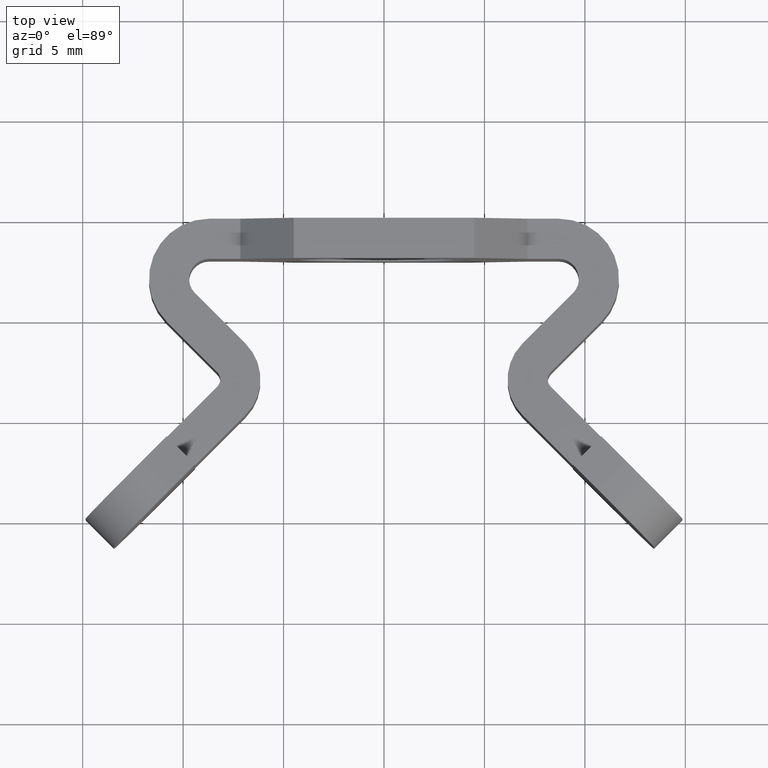
[diagram: clean part render]
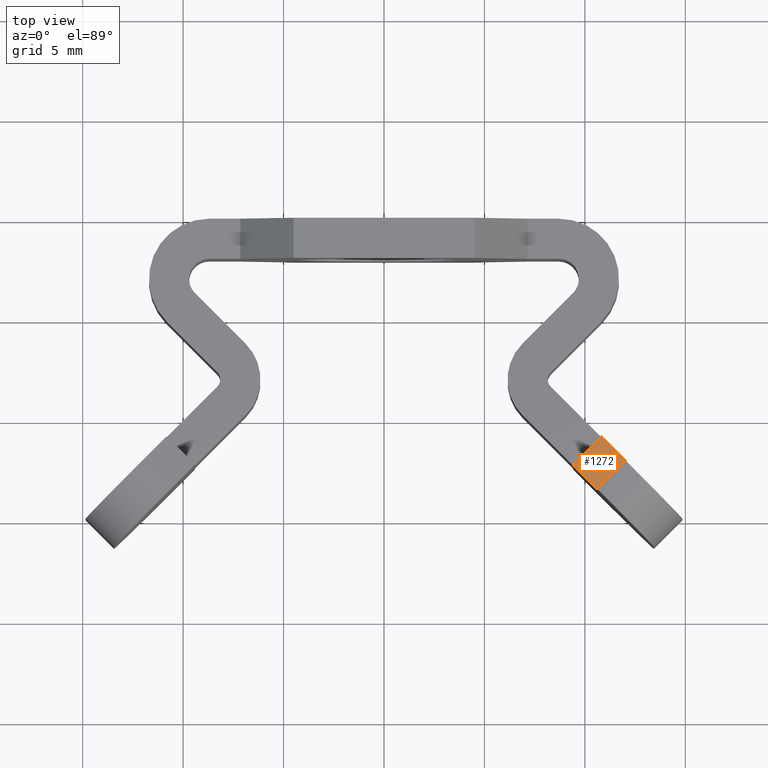
[diagram: same view with one face highlighted and labeled with its STEP entity id]
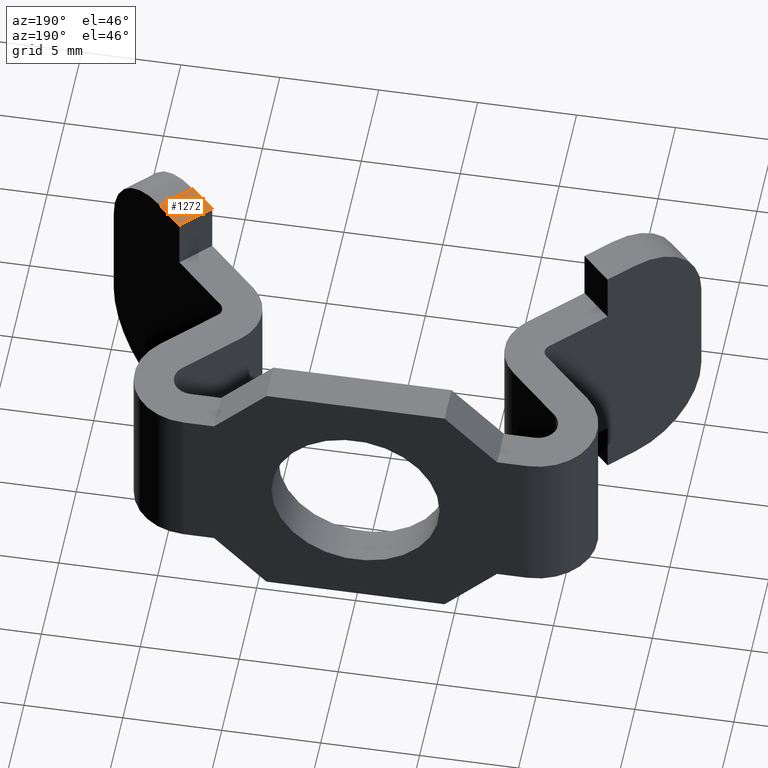
[diagram: same view with one face highlighted and labeled with its STEP entity id]
A machine part, top view. The second image highlights one B-rep face of the part: STEP entity #1272.
A second angle (auxiliary view) of the same face is appended — the face is thin or edge-on in the first view.
In plain terms, the highlighted planar face has unit normal (0, 0, -1).
Its self-contained STEP definition (entity closure, byte-faithful):
#982=CARTESIAN_POINT('',(10.609188312841070,-13.494974437473502,6.649999999973261));
#983=VERTEX_POINT('',#982);
#991=CARTESIAN_POINT('',(9.407107000034102,-12.292893124632428,6.649999999973261));
#992=VERTEX_POINT('',#991);
#993=CARTESIAN_POINT('',(10.609188312841621,-13.494974437472951,6.649999999973261));
#994=DIRECTION('',(-0.707106781176860,0.707106781196235,0.0));
#995=VECTOR('',#994,1.699999695671038);
#996=LINE('',#993,#995);
#997=EDGE_CURVE('',#983,#992,#996,.T.);
#1125=CARTESIAN_POINT('',(10.821320562427445,-10.878679562280013,6.649999999973261));
#1126=VERTEX_POINT('',#1125);
#1133=CARTESIAN_POINT('',(12.023401875233503,-12.080760875119267,6.649999999973261));
#1134=VERTEX_POINT('',#1133);
#1135=CARTESIAN_POINT('',(10.821320562427378,-10.878679562280013,6.649999999973261));
#1136=DIRECTION('',(0.707106781176860,-0.707106781196235,0.0));
#1137=VECTOR('',#1136,1.699999695669104);
#1138=LINE('',#1135,#1137);
#1139=EDGE_CURVE('',#1126,#1134,#1138,.T.);
#1165=CARTESIAN_POINT('',(12.023401875233503,-12.080760875119267,6.649999999973261));
#1166=DIRECTION('',(-0.707106781196097,-0.707106781176998,0.0));
#1167=VECTOR('',#1166,2.000000000000338);
#1168=LINE('',#1165,#1167);
#1169=EDGE_CURVE('',#1134,#983,#1168,.T.);
#1256=CARTESIAN_POINT('',(-1.782155E-009,-33.731389436312838,6.649999999973261));
#1257=DIRECTION('',(0.0,0.0,-1.0));
#1258=DIRECTION('',(-0.707106781186548,0.707106781186548,0.0));
#1259=AXIS2_PLACEMENT_3D('',#1256,#1257,#1258);
#1260=PLANE('',#1259);
#1261=ORIENTED_EDGE('',*,*,#1139,.F.);
#1262=CARTESIAN_POINT('',(10.821320562427445,-10.878679562280013,6.649999999973261));
#1263=DIRECTION('',(-0.707106781196779,-0.707106781176316,0.0));
#1264=VECTOR('',#1263,1.999999999999695);
#1265=LINE('',#1262,#1264);
#1266=EDGE_CURVE('',#1126,#992,#1265,.T.);
#1267=ORIENTED_EDGE('',*,*,#1266,.T.);
#1268=ORIENTED_EDGE('',*,*,#997,.F.);
#1269=ORIENTED_EDGE('',*,*,#1169,.F.);
#1270=EDGE_LOOP('',(#1261,#1267,#1268,#1269));
#1271=FACE_OUTER_BOUND('',#1270,.T.);
#1272=ADVANCED_FACE('',(#1271),#1260,.F.);